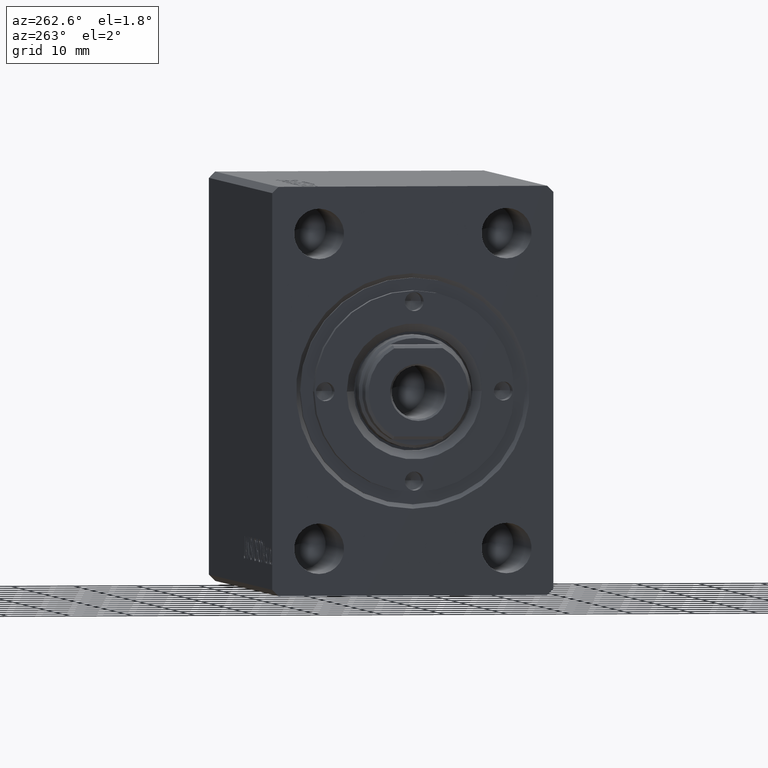
[diagram: clean part render]
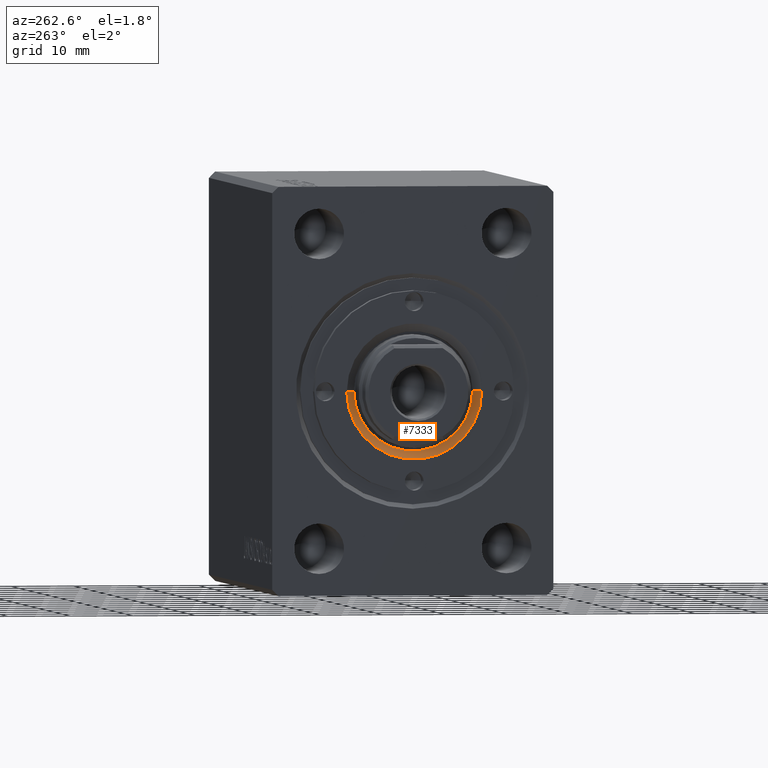
[diagram: same view with one face highlighted and labeled with its STEP entity id]
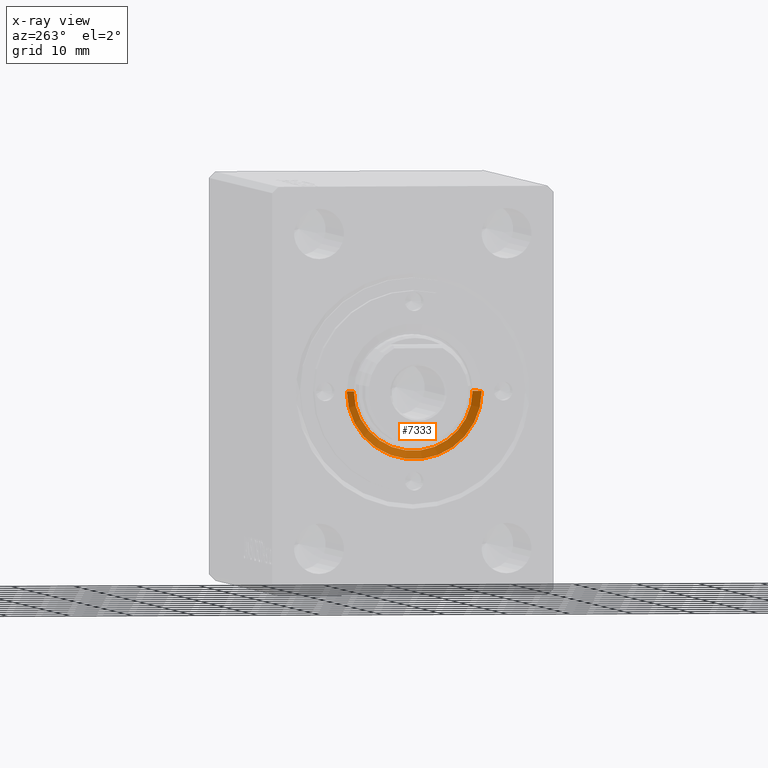
[diagram: x-ray of the same camera — body ghosted, the highlighted face saturated]
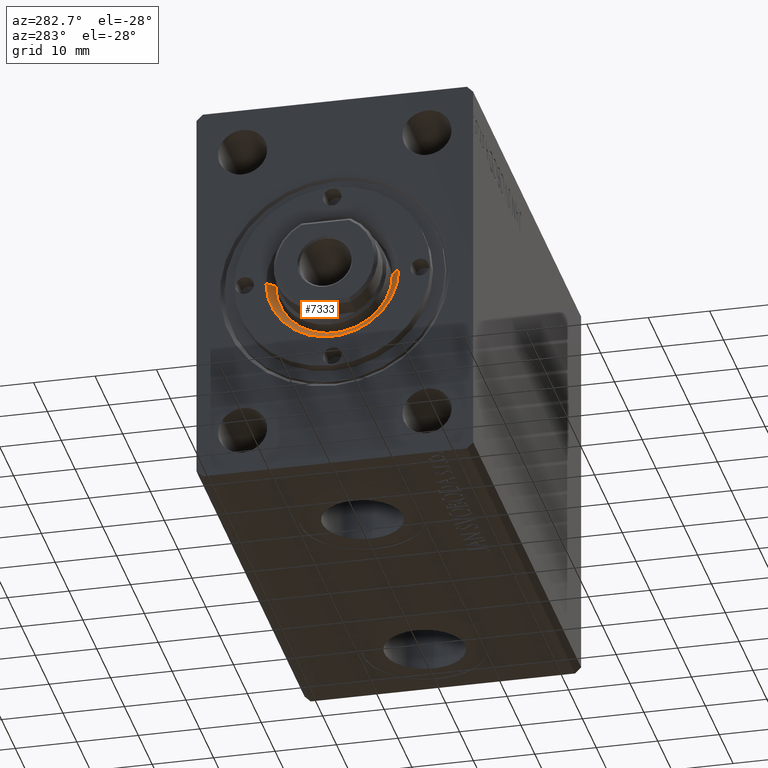
[diagram: same view with one face highlighted and labeled with its STEP entity id]
A machine part, auxiliary view. The second image highlights one B-rep face of the part: STEP entity #7333.
The next image is the same camera in x-ray: the body ghosted, the highlighted face saturated — about 0% of this face is hidden behind the body in this view.
A second angle (auxiliary view) of the same face is appended — the face is thin or edge-on in the first view.
In plain terms, the highlighted conical surface has half-angle 45 deg.
Its self-contained STEP definition (entity closure, byte-faithful):
#1053 = AXIS2_PLACEMENT_3D ( 'NONE', #12861, #26697, #40300 ) ;
#1641 = EDGE_CURVE ( 'NONE', #17050, #34221, #34188, .T. ) ;
#1869 = CARTESIAN_POINT ( 'NONE',  ( 10.79999999999998117, 0.000000000000000000, 59.80000000000000426 ) ) ;
#2301 = EDGE_LOOP ( 'NONE', ( #42940, #36283, #23519, #43470 ) ) ;
#2544 = CARTESIAN_POINT ( 'NONE',  ( 0.000000000000000000, 0.000000000000000000, 58.00000000000000000 ) ) ;
#3743 = CARTESIAN_POINT ( 'NONE',  ( 9.500000000000000000, 0.000000000000000000, 58.50000000000003553 ) ) ;
#3829 = CARTESIAN_POINT ( 'NONE',  ( -9.500000000000000000, 1.163414459189985485E-15, 58.50000000000003553 ) ) ;
#6662 = CARTESIAN_POINT ( 'NONE',  ( -10.79999999999998117, 1.322618543079139127E-15, 59.80000000000000426 ) ) ;
#7333 = ADVANCED_FACE ( 'NONE', ( #8798 ), #25098, .F. ) ;
#8798 = FACE_OUTER_BOUND ( 'NONE', #2301, .T. ) ;
#10847 = EDGE_CURVE ( 'NONE', #29861, #34221, #13668, .T. ) ;
#12861 = CARTESIAN_POINT ( 'NONE',  ( 0.000000000000000000, 0.000000000000000000, 58.50000000000003553 ) ) ;
#13213 = DIRECTION ( 'NONE',  ( 0.7071067811865514585, 0.000000000000000000, 0.7071067811865435759 ) ) ;
#13509 = AXIS2_PLACEMENT_3D ( 'NONE', #23628, #43474, #30086 ) ;
#13668 = LINE ( 'NONE', #40887, #25836 ) ;
#14734 = CARTESIAN_POINT ( 'NONE',  ( -8.999999999999957367, 1.102182119232612784E-15, 58.00000000000000000 ) ) ;
#17050 = VERTEX_POINT ( 'NONE', #6662 ) ;
#21445 = LINE ( 'NONE', #14734, #29201 ) ;
#22662 = DIRECTION ( 'NONE',  ( 1.000000000000000000, 0.000000000000000000, 0.000000000000000000 ) ) ;
#23519 = ORIENTED_EDGE ( 'NONE', *, *, #10847, .T. ) ;
#23628 = CARTESIAN_POINT ( 'NONE',  ( 0.000000000000000000, 0.000000000000000000, 59.80000000000000426 ) ) ;
#24562 = DIRECTION ( 'NONE',  ( -0.7071067811865514585, 8.659560562354980929E-17, 0.7071067811865435759 ) ) ;
#25098 = CONICAL_SURFACE ( 'NONE', #25774, 8.999999999999957367, 0.7853981633974538301 ) ;
#25774 = AXIS2_PLACEMENT_3D ( 'NONE', #2544, #25997, #22662 ) ;
#25836 = VECTOR ( 'NONE', #13213, 1000.000000000000000 ) ;
#25875 = EDGE_CURVE ( 'NONE', #32344, #17050, #21445, .T. ) ;
#25997 = DIRECTION ( 'NONE',  ( 0.000000000000000000, 0.000000000000000000, 1.000000000000000000 ) ) ;
#26697 = DIRECTION ( 'NONE',  ( 0.000000000000000000, 0.000000000000000000, 1.000000000000000000 ) ) ;
#29201 = VECTOR ( 'NONE', #24562, 1000.000000000000000 ) ;
#29861 = VERTEX_POINT ( 'NONE', #3743 ) ;
#30012 = EDGE_CURVE ( 'NONE', #29861, #32344, #38801, .T. ) ;
#30086 = DIRECTION ( 'NONE',  ( 1.000000000000000000, 0.000000000000000000, 0.000000000000000000 ) ) ;
#32344 = VERTEX_POINT ( 'NONE', #3829 ) ;
#34188 = CIRCLE ( 'NONE', #13509, 10.79999999999998295 ) ;
#34221 = VERTEX_POINT ( 'NONE', #1869 ) ;
#36283 = ORIENTED_EDGE ( 'NONE', *, *, #30012, .F. ) ;
#38801 = CIRCLE ( 'NONE', #1053, 9.500000000000000000 ) ;
#40300 = DIRECTION ( 'NONE',  ( 1.000000000000000000, 0.000000000000000000, 0.000000000000000000 ) ) ;
#40887 = CARTESIAN_POINT ( 'NONE',  ( 8.999999999999957367, 0.000000000000000000, 58.00000000000000000 ) ) ;
#42940 = ORIENTED_EDGE ( 'NONE', *, *, #25875, .F. ) ;
#43470 = ORIENTED_EDGE ( 'NONE', *, *, #1641, .F. ) ;
#43474 = DIRECTION ( 'NONE',  ( -0.000000000000000000, -0.000000000000000000, -1.000000000000000000 ) ) ;